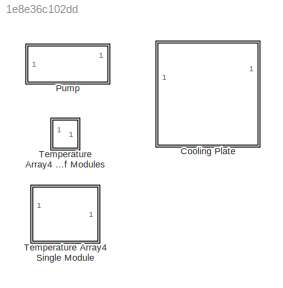
MODEL slx_1e8e36c102dd
KIND library
CONFIG SolverName = VariableStepAuto
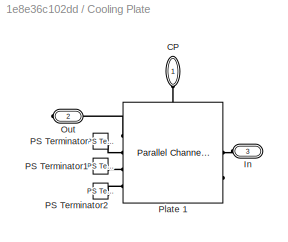
BLOCK [SubSystem] Cooling Plate
BLOCK [PMIOPort] Cooling Plate/CP
  NameLocation = left
  Side = Left
BLOCK [PMIOPort] Cooling Plate/In
  Port = 3
  Side = Left
BLOCK [PMIOPort] Cooling Plate/Out
  Port = 2
  Side = Right
BLOCK [Reference] Cooling Plate/PS Terminator  REF=fl_lib/Physical Signals/Sinks/PS Terminator
  SourceBlock = fl_lib/Physical Signals/Sinks/PS Terminator
  SourceType = PS Terminator
BLOCK [Reference] Cooling Plate/PS Terminator1  REF=fl_lib/Physical Signals/Sinks/PS Terminator
  SourceBlock = fl_lib/Physical Signals/Sinks/PS Terminator
  SourceType = PS Terminator
BLOCK [Reference] Cooling Plate/PS Terminator2  REF=fl_lib/Physical Signals/Sinks/PS Terminator
  SourceBlock = fl_lib/Physical Signals/Sinks/PS Terminator
  SourceType = PS Terminator
BLOCK [Reference] Cooling Plate/Plate 1  REF=batt_lib/Thermal/Parallel Channels
  SourceBlock = batt_lib/Thermal/Parallel Channels
  SourceType = Parallel Channels
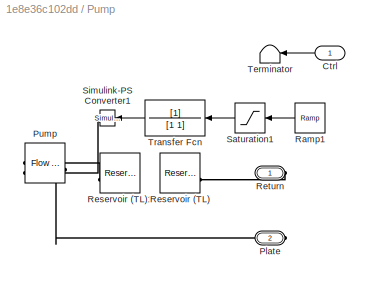
BLOCK [SubSystem] Pump
BLOCK [Inport] Pump/Ctrl
BLOCK [PMIOPort] Pump/Plate
  Port = 2
  Side = Right
BLOCK [Reference] Pump/Pump  REF=fl_lib/Thermal Liquid/Sources/Flow Rate Source
(TL)
  NameLocation = top
  SourceBlock = fl_lib/Thermal Liquid/Sources/Flow Rate Source\n(TL)
  SourceType = Flow Rate Source\n(TL)
BLOCK [Reference] Pump/Ramp1  REF=simulink/Sources/Ramp
  SourceBlock = simulink/Sources/Ramp
  SourceType = Ramp
BLOCK [Reference] Pump/Reservoir (TL)  REF=fl_lib/Thermal Liquid/Elements/Reservoir (TL)
  NameLocation = top
  SourceBlock = fl_lib/Thermal Liquid/Elements/Reservoir (TL)
  SourceType = Reservoir (TL)
BLOCK [Reference] Pump/Reservoir (TL)1  REF=fl_lib/Thermal Liquid/Elements/Reservoir (TL)
  NameLocation = top
  SourceBlock = fl_lib/Thermal Liquid/Elements/Reservoir (TL)
  SourceType = Reservoir (TL)
BLOCK [PMIOPort] Pump/Return
  Side = Right
BLOCK [Saturate] Pump/Saturation1
  LowerLimit = 0
  UpperLimit = cooling_system.pump_max_flow*num_plates
  ZeroCross = off
BLOCK [Reference] Pump/Simulink-PS Converter1  REF=nesl_utility/Simulink-PS
Converter
  NameLocation = top
  SourceBlock = nesl_utility/Simulink-PS\nConverter
  SourceType = Simulink-PS\nConverter
BLOCK [Terminator] Pump/Terminator
  NameLocation = top
BLOCK [TransferFcn] Pump/Transfer Fcn
  Denominator = [1 1]
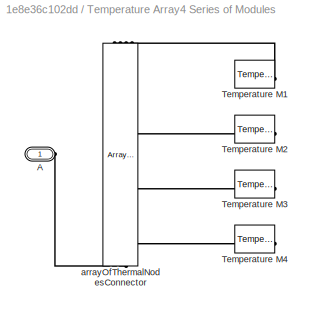
BLOCK [SubSystem] Temperature Array4 Series of Modules
BLOCK [PMIOPort] Temperature Array4 Series of Modules/A
  Side = Left
BLOCK [Reference] Temperature Array4 Series of Modules/Temperature M1  REF=fl_lib/Thermal/Thermal Sources/Temperature Source
  NameLocation = top
  SourceBlock = fl_lib/Thermal/Thermal Sources/Temperature Source
  SourceType = Temperature Source
BLOCK [Reference] Temperature Array4 Series of Modules/Temperature M2  REF=fl_lib/Thermal/Thermal Sources/Temperature Source
  NameLocation = top
  SourceBlock = fl_lib/Thermal/Thermal Sources/Temperature Source
  SourceType = Temperature Source
BLOCK [Reference] Temperature Array4 Series of Modules/Temperature M3  REF=fl_lib/Thermal/Thermal Sources/Temperature Source
  NameLocation = top
  SourceBlock = fl_lib/Thermal/Thermal Sources/Temperature Source
  SourceType = Temperature Source
BLOCK [Reference] Temperature Array4 Series of Modules/Temperature M4  REF=fl_lib/Thermal/Thermal Sources/Temperature Source
  NameLocation = top
  SourceBlock = fl_lib/Thermal/Thermal Sources/Temperature Source
  SourceType = Temperature Source
BLOCK [Reference] Temperature Array4 Series of Modules/arrayOfThermalNodesConnector  REF=batt_lib/Thermal/Array of Thermal
Nodes Connector
  NameLocation = top
  SourceBlock = batt_lib/Thermal/Array of Thermal\nNodes Connector
  SourceType = Array of Thermal\nNodes Connector
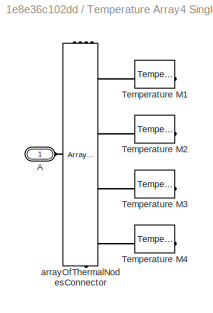
BLOCK [SubSystem] Temperature Array4 Single Module
BLOCK [PMIOPort] Temperature Array4 Single Module/A
  Side = Left
BLOCK [Reference] Temperature Array4 Single Module/Temperature M1  REF=fl_lib/Thermal/Thermal Sources/Temperature Source
  SourceBlock = fl_lib/Thermal/Thermal Sources/Temperature Source
  SourceType = Temperature Source
BLOCK [Reference] Temperature Array4 Single Module/Temperature M2  REF=fl_lib/Thermal/Thermal Sources/Temperature Source
  SourceBlock = fl_lib/Thermal/Thermal Sources/Temperature Source
  SourceType = Temperature Source
BLOCK [Reference] Temperature Array4 Single Module/Temperature M3  REF=fl_lib/Thermal/Thermal Sources/Temperature Source
  SourceBlock = fl_lib/Thermal/Thermal Sources/Temperature Source
  SourceType = Temperature Source
BLOCK [Reference] Temperature Array4 Single Module/Temperature M4  REF=fl_lib/Thermal/Thermal Sources/Temperature Source
  SourceBlock = fl_lib/Thermal/Thermal Sources/Temperature Source
  SourceType = Temperature Source
BLOCK [Reference] Temperature Array4 Single Module/arrayOfThermalNodesConnector  REF=batt_lib/Thermal/Array of Thermal
Nodes Connector
  NameLocation = top
  SourceBlock = batt_lib/Thermal/Array of Thermal\nNodes Connector
  SourceType = Array of Thermal\nNodes Connector
LINE Pump/Ctrl:1 -> Pump/Terminator:1
LINE Pump/Ramp1:1 -> Pump/Saturation1:1
LINE Pump/Saturation1:1 -> Pump/Transfer Fcn:1
LINE Pump/Transfer Fcn:1 -> Pump/Simulink-PS Converter1:1
PLINE Cooling Plate/CP:RConn1 -- Cooling Plate/Plate 1:LConn2
PLINE Cooling Plate/In:RConn1 -- Cooling Plate/Plate 1:LConn1
PLINE Cooling Plate/Out:RConn1 -- Cooling Plate/Plate 1:RConn1
PLINE Cooling Plate/PS Terminator1:LConn1 -- Cooling Plate/Plate 1:RConn3
PLINE Cooling Plate/PS Terminator2:LConn1 -- Cooling Plate/Plate 1:RConn4
PLINE Cooling Plate/PS Terminator:LConn1 -- Cooling Plate/Plate 1:RConn2
PLINE Pump/Plate:RConn1 -- Pump/Pump:RConn1
PLINE Pump/Pump:LConn1 -- Pump/Reservoir (TL)1:LConn1
PLINE Pump/Pump:LConn2 -- Pump/Simulink-PS Converter1:RConn1
PLINE Pump/Reservoir (TL):LConn1 -- Pump/Return:RConn1
PLINE Temperature Array4 Series of Modules/A:RConn1 -- Temperature Array4 Series of Modules/arrayOfThermalNodesConnector:RConn1
PLINE Temperature Array4 Series of Modules/Temperature M1:LConn1 -- Temperature Array4 Series of Modules/arrayOfThermalNodesConnector:LConn1
PLINE Temperature Array4 Series of Modules/Temperature M2:LConn1 -- Temperature Array4 Series of Modules/arrayOfThermalNodesConnector:LConn2
PLINE Temperature Array4 Series of Modules/Temperature M3:LConn1 -- Temperature Array4 Series of Modules/arrayOfThermalNodesConnector:LConn3
PLINE Temperature Array4 Series of Modules/Temperature M4:LConn1 -- Temperature Array4 Series of Modules/arrayOfThermalNodesConnector:LConn4
PLINE Temperature Array4 Single Module/A:RConn1 -- Temperature Array4 Single Module/arrayOfThermalNodesConnector:RConn1
PLINE Temperature Array4 Single Module/Temperature M1:LConn1 -- Temperature Array4 Single Module/arrayOfThermalNodesConnector:LConn1
PLINE Temperature Array4 Single Module/Temperature M2:LConn1 -- Temperature Array4 Single Module/arrayOfThermalNodesConnector:LConn2
PLINE Temperature Array4 Single Module/Temperature M3:LConn1 -- Temperature Array4 Single Module/arrayOfThermalNodesConnector:LConn3
PLINE Temperature Array4 Single Module/Temperature M4:LConn1 -- Temperature Array4 Single Module/arrayOfThermalNodesConnector:LConn4
